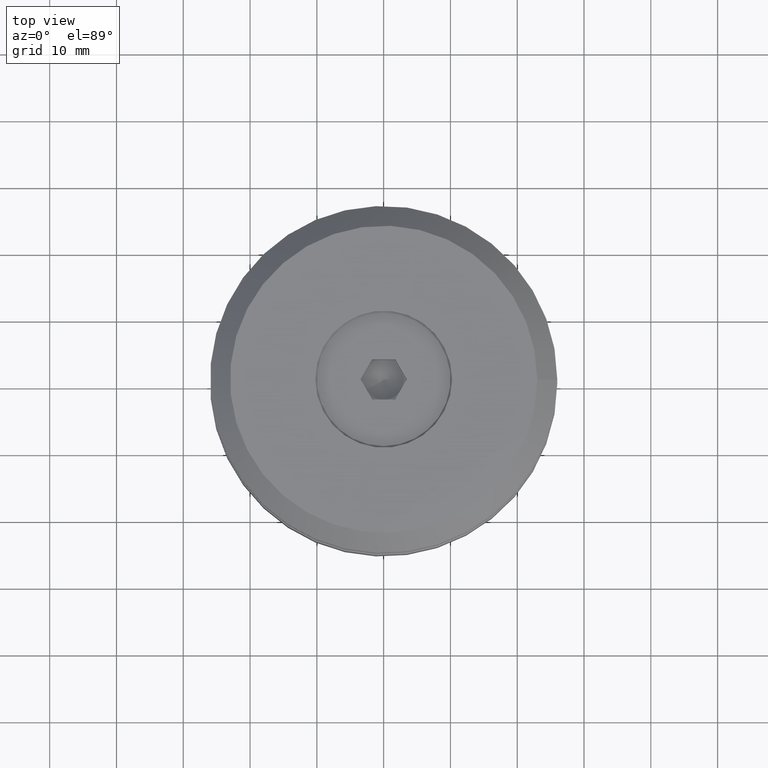
[diagram: clean part render]
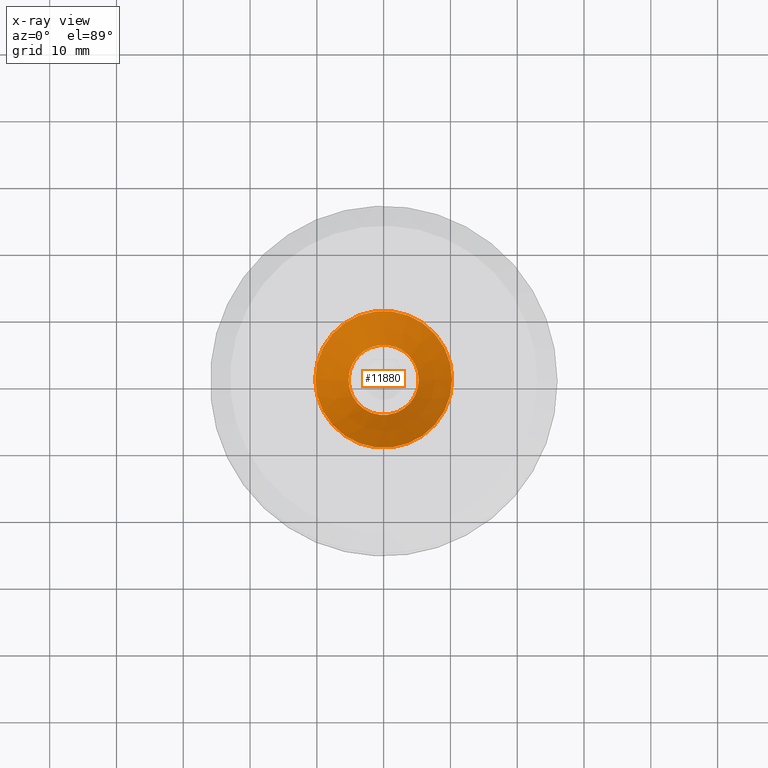
[diagram: x-ray — body ghosted, one internal face saturated and labeled with its STEP entity id]
A machine part, top view, then the same camera in x-ray: the body is ghosted and one INTERNAL B-rep face — a face not visible from any outside direction — is saturated and labeled: STEP entity #11880.
In plain terms, the highlighted conical surface has half-angle 45 deg.
Its self-contained STEP definition (entity closure, byte-faithful):
#992 = VERTEX_POINT ( 'NONE', #3662 ) ;
#1113 = CARTESIAN_POINT ( 'NONE',  ( 0.0000000000000000000, 0.0000000000000000000, -0.4999999999999978400 ) ) ;
#3662 = CARTESIAN_POINT ( 'NONE',  ( 5.249999999999998200, 0.0000000000000000000, -0.4999999999999978400 ) ) ;
#4130 = FACE_OUTER_BOUND ( 'NONE', #16768, .T. ) ;
#4362 = ORIENTED_EDGE ( 'NONE', *, *, #13661, .T. ) ;
#4731 = AXIS2_PLACEMENT_3D ( 'NONE', #1113, #16664, #10202 ) ;
#4755 = AXIS2_PLACEMENT_3D ( 'NONE', #4788, #8713, #14054 ) ;
#4788 = CARTESIAN_POINT ( 'NONE',  ( 0.0000000000000000000, 0.0000000000000000000, 4.500000000000000900 ) ) ;
#6549 = FACE_BOUND ( 'NONE', #6734, .T. ) ;
#6734 = EDGE_LOOP ( 'NONE', ( #12571 ) ) ;
#8004 = CIRCLE ( 'NONE', #4731, 5.249999999999998200 ) ;
#8713 = DIRECTION ( 'NONE',  ( -0.0000000000000000000, -0.0000000000000000000, 1.000000000000000000 ) ) ;
#9256 = EDGE_CURVE ( 'NONE', #992, #992, #8004, .T. ) ;
#10093 = CARTESIAN_POINT ( 'NONE',  ( 0.0000000000000000000, 0.0000000000000000000, 4.500000000000000900 ) ) ;
#10202 = DIRECTION ( 'NONE',  ( 1.000000000000000000, 0.0000000000000000000, 0.0000000000000000000 ) ) ;
#10517 = CARTESIAN_POINT ( 'NONE',  ( 10.25000000000000000, 0.0000000000000000000, 4.500000000000000900 ) ) ;
#11880 = ADVANCED_FACE ( 'NONE', ( #6549, #4130 ), #12080, .F. ) ;
#12080 = CONICAL_SURFACE ( 'NONE', #12593, 10.25000000000000000, 0.7853981633974485000 ) ;
#12571 = ORIENTED_EDGE ( 'NONE', *, *, #9256, .F. ) ;
#12593 = AXIS2_PLACEMENT_3D ( 'NONE', #10093, #16724, #14035 ) ;
#13661 = EDGE_CURVE ( 'NONE', #16694, #16694, #13860, .T. ) ;
#13860 = CIRCLE ( 'NONE', #4755, 10.25000000000000000 ) ;
#14035 = DIRECTION ( 'NONE',  ( 1.000000000000000000, 0.0000000000000000000, 0.0000000000000000000 ) ) ;
#14054 = DIRECTION ( 'NONE',  ( 1.000000000000000000, 0.0000000000000000000, 0.0000000000000000000 ) ) ;
#16664 = DIRECTION ( 'NONE',  ( -0.0000000000000000000, -0.0000000000000000000, 1.000000000000000000 ) ) ;
#16694 = VERTEX_POINT ( 'NONE', #10517 ) ;
#16724 = DIRECTION ( 'NONE',  ( -0.0000000000000000000, -0.0000000000000000000, 1.000000000000000000 ) ) ;
#16768 = EDGE_LOOP ( 'NONE', ( #4362 ) ) ;